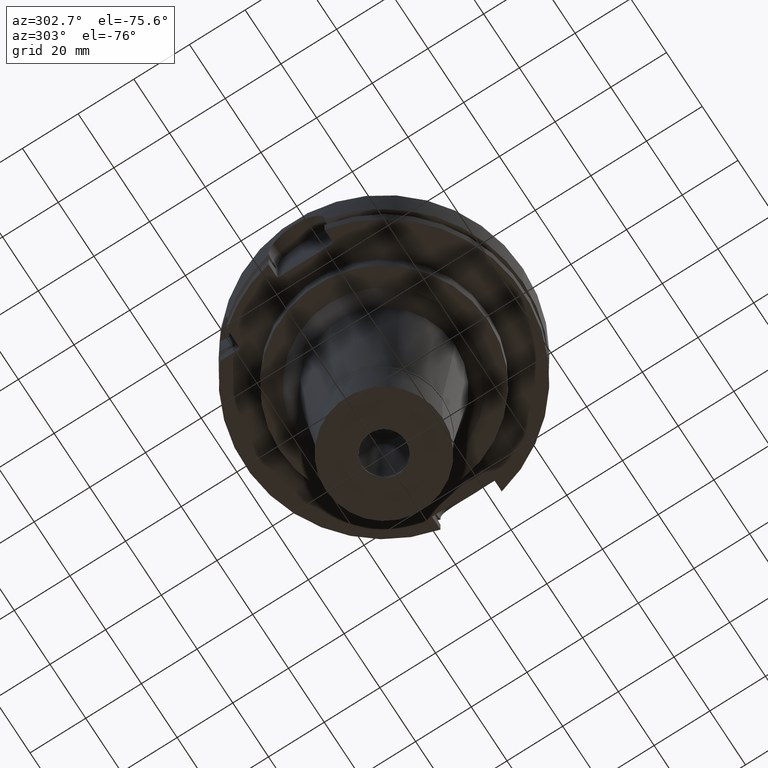
[diagram: clean part render]
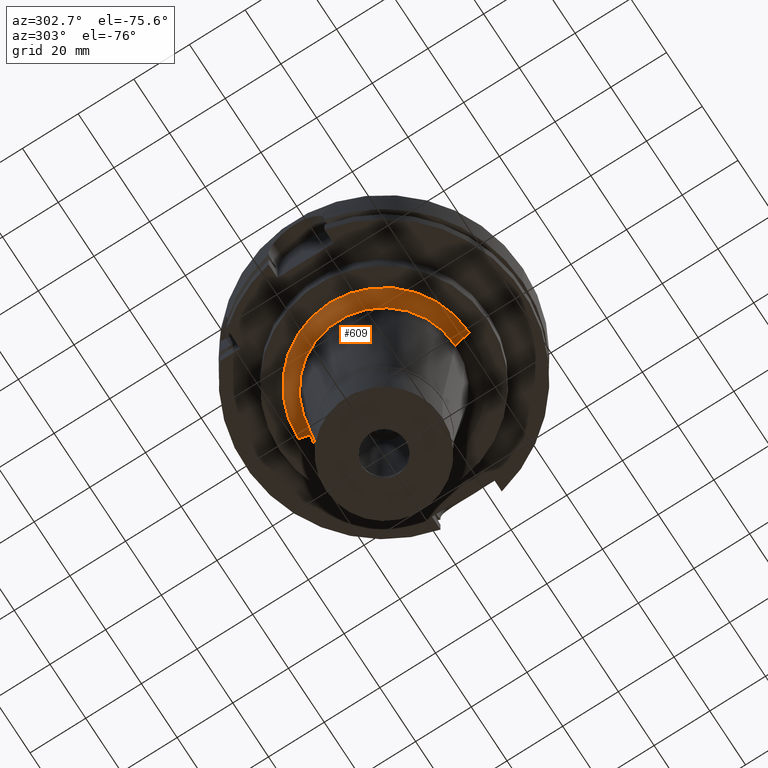
[diagram: same view with one face highlighted and labeled with its STEP entity id]
A machine part, auxiliary view. The second image highlights one B-rep face of the part: STEP entity #609.
In plain terms, the highlighted conical surface has half-angle 45 deg.
Its self-contained STEP definition (entity closure, byte-faithful):
#133 = DIRECTION ( 'NONE',  ( 0.0000000000000000000, 0.0000000000000000000, 1.000000000000000000 ) ) ;
#341 = CIRCLE ( 'NONE', #2818, 30.62815030052000154 ) ;
#347 = ORIENTED_EDGE ( 'NONE', *, *, #2965, .T. ) ;
#609 = ADVANCED_FACE ( 'NONE', ( #1915 ), #4066, .T. ) ;
#982 = CARTESIAN_POINT ( 'NONE',  ( 0.0000000000000000000, 0.0000000000000000000, -37.00000000000000000 ) ) ;
#1108 = CARTESIAN_POINT ( 'NONE',  ( 0.0000000000000000000, -30.62815030052000154, -37.00000000000000000 ) ) ;
#1131 = EDGE_CURVE ( 'NONE', #2157, #3629, #4153, .T. ) ;
#1173 = LINE ( 'NONE', #5212, #1927 ) ;
#1264 = DIRECTION ( 'NONE',  ( 0.0000000000000000000, -0.7071067811864980568, -0.7071067811865969777 ) ) ;
#1637 = CARTESIAN_POINT ( 'NONE',  ( 0.0000000000000000000, -30.62815030052000154, -37.00000000000000000 ) ) ;
#1759 = VERTEX_POINT ( 'NONE', #5057 ) ;
#1771 = DIRECTION ( 'NONE',  ( 0.0000000000000000000, 0.0000000000000000000, -1.000000000000000000 ) ) ;
#1842 = DIRECTION ( 'NONE',  ( 0.0000000000000000000, -1.000000000000000000, 0.0000000000000000000 ) ) ;
#1871 = DIRECTION ( 'NONE',  ( 0.0000000000000000000, 1.000000000000000000, 0.0000000000000000000 ) ) ;
#1915 = FACE_OUTER_BOUND ( 'NONE', #3225, .T. ) ;
#1927 = VECTOR ( 'NONE', #1264, 1000.000000000000000 ) ;
#2157 = VERTEX_POINT ( 'NONE', #3735 ) ;
#2183 = DIRECTION ( 'NONE',  ( 0.0000000000000000000, -1.000000000000000000, 0.0000000000000000000 ) ) ;
#2296 = VERTEX_POINT ( 'NONE', #1637 ) ;
#2390 = ORIENTED_EDGE ( 'NONE', *, *, #2823, .T. ) ;
#2429 = AXIS2_PLACEMENT_3D ( 'NONE', #4937, #133, #1871 ) ;
#2435 = AXIS2_PLACEMENT_3D ( 'NONE', #2672, #1771, #2183 ) ;
#2451 = ORIENTED_EDGE ( 'NONE', *, *, #3623, .F. ) ;
#2672 = CARTESIAN_POINT ( 'NONE',  ( 0.0000000000000000000, 0.0000000000000000000, -42.00000000000000000 ) ) ;
#2695 = DIRECTION ( 'NONE',  ( 0.0000000000000000000, 0.0000000000000000000, -1.000000000000000000 ) ) ;
#2702 = ORIENTED_EDGE ( 'NONE', *, *, #1131, .F. ) ;
#2818 = AXIS2_PLACEMENT_3D ( 'NONE', #982, #2695, #1842 ) ;
#2823 = EDGE_CURVE ( 'NONE', #2296, #1759, #341, .T. ) ;
#2898 = LINE ( 'NONE', #1108, #4646 ) ;
#2965 = EDGE_CURVE ( 'NONE', #1759, #3629, #1173, .T. ) ;
#3225 = EDGE_LOOP ( 'NONE', ( #2702, #2451, #2390, #347 ) ) ;
#3297 = CARTESIAN_POINT ( 'NONE',  ( 0.0000000000000000000, 25.62815030052000154, -42.00000000000000000 ) ) ;
#3623 = EDGE_CURVE ( 'NONE', #2296, #2157, #2898, .T. ) ;
#3629 = VERTEX_POINT ( 'NONE', #3297 ) ;
#3735 = CARTESIAN_POINT ( 'NONE',  ( 0.0000000000000000000, -25.62815030052000154, -42.00000000000000000 ) ) ;
#4066 = CONICAL_SURFACE ( 'NONE', #2429, 28.12815030052000154, 0.7853981633972997312 ) ;
#4153 = CIRCLE ( 'NONE', #2435, 25.62815030052000154 ) ;
#4646 = VECTOR ( 'NONE', #5398, 1000.000000000000000 ) ;
#4937 = CARTESIAN_POINT ( 'NONE',  ( 0.0000000000000000000, 0.0000000000000000000, -39.50000000000000000 ) ) ;
#5057 = CARTESIAN_POINT ( 'NONE',  ( 0.0000000000000000000, 30.62815030052000154, -37.00000000000000000 ) ) ;
#5212 = CARTESIAN_POINT ( 'NONE',  ( 0.0000000000000000000, 30.62815030052000154, -37.00000000000000000 ) ) ;
#5398 = DIRECTION ( 'NONE',  ( 0.0000000000000000000, 0.7071067811864980568, -0.7071067811865969777 ) ) ;